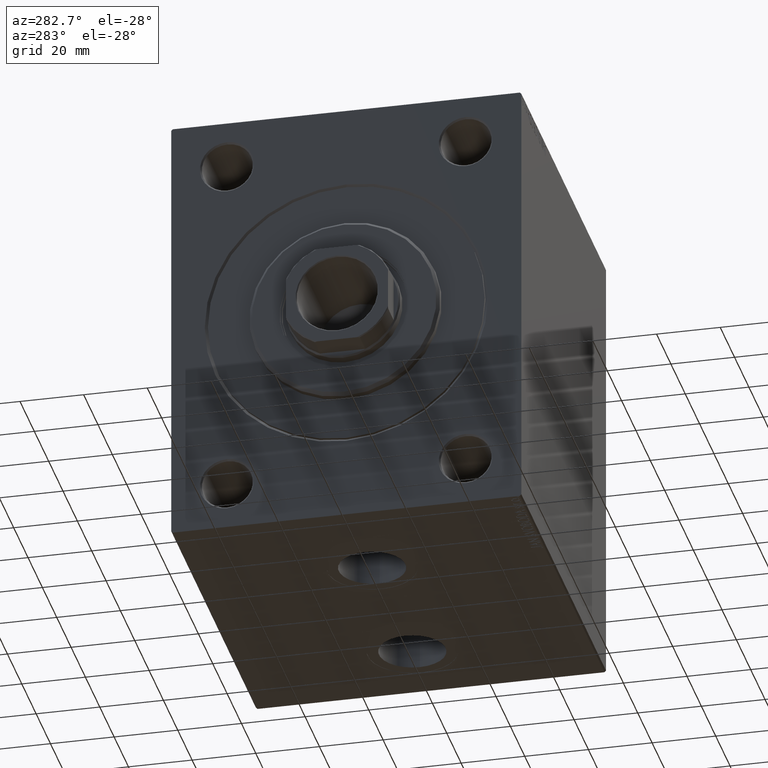
[diagram: clean part render]
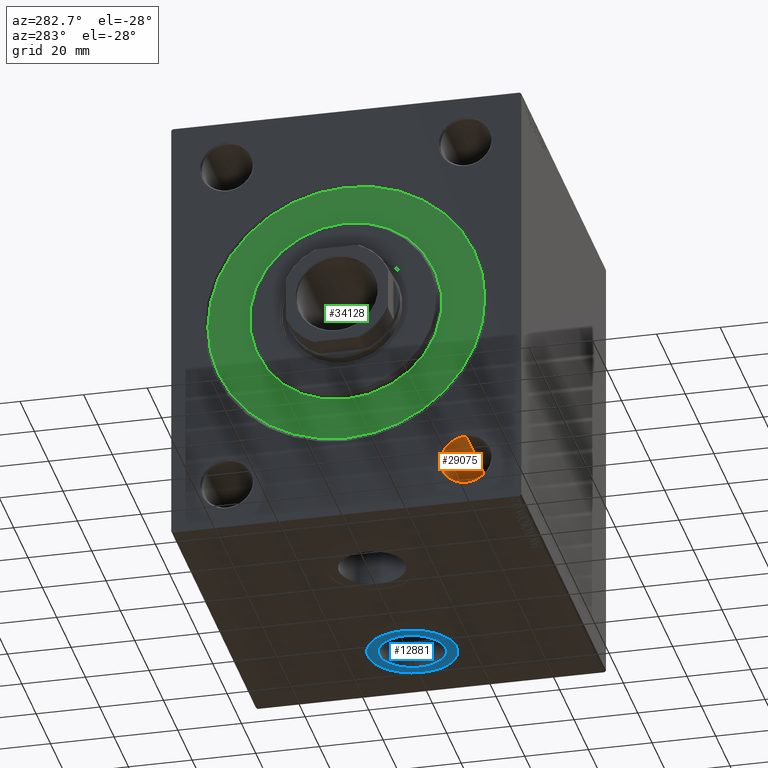
[diagram: same view with three faces highlighted in distinct colors, each labeled with its STEP entity id]
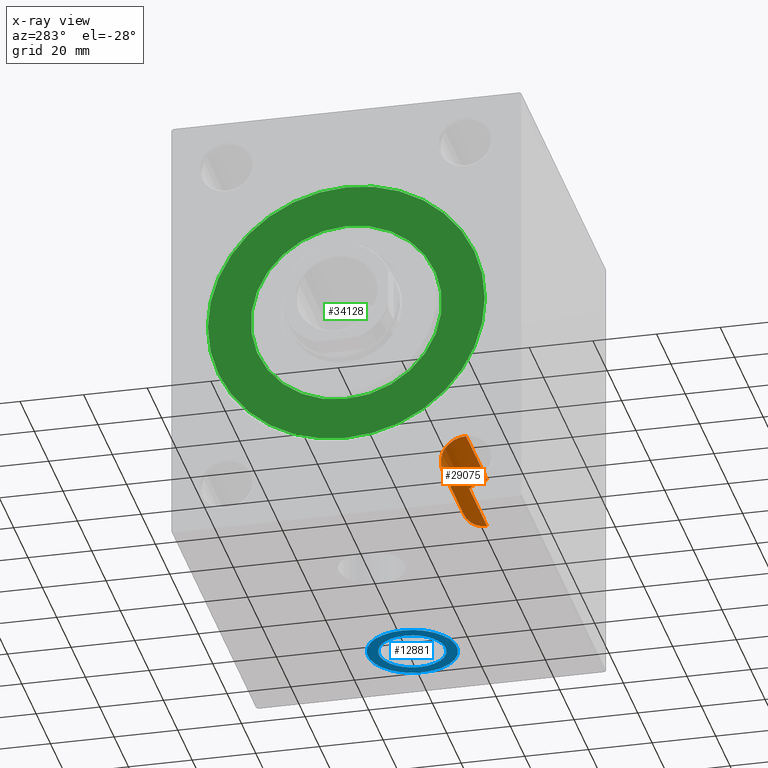
[diagram: x-ray of the same camera — body ghosted, the three highlighted faces saturated]
A machine part, auxiliary view with three faces highlighted in distinct colors.
The next image is the same camera in x-ray (body ghosted, the three faces saturated) — at least one of them is partly hidden behind the body in this view.
Their STEP definitions:

[orange] entity #29075 — the highlighted cylindrical surface (edge-blend (fillet) strip) has radius 8 mm, axis along (-1, -0, -0).
#1855 = EDGE_CURVE ( 'NONE', #7362, #41168, #27287, .T. ) ;
#6958 = VECTOR ( 'NONE', #22902, 1000.000000000000000 ) ;
#7362 = VERTEX_POINT ( 'NONE', #11000 ) ;
#7599 = CYLINDRICAL_SURFACE ( 'NONE', #10254, 7.999999999999992895 ) ;
#10254 = AXIS2_PLACEMENT_3D ( 'NONE', #27863, #39350, #21404 ) ;
#10967 = LINE ( 'NONE', #25005, #6958 ) ;
#11000 = CARTESIAN_POINT ( 'NONE',  ( 0.5000000000000125455, -37.49999999999999289, -47.00000000000000000 ) ) ;
#11534 = EDGE_CURVE ( 'NONE', #30132, #41168, #10967, .T. ) ;
#12246 = EDGE_CURVE ( 'NONE', #37604, #30132, #28314, .T. ) ;
#12444 = ORIENTED_EDGE ( 'NONE', *, *, #1855, .T. ) ;
#12897 = CARTESIAN_POINT ( 'NONE',  ( 30.00000000000000000, -37.49999999999999289, -54.99999999999999289 ) ) ;
#14554 = ORIENTED_EDGE ( 'NONE', *, *, #12246, .F. ) ;
#15951 = CARTESIAN_POINT ( 'NONE',  ( 0.5000000000000125455, -37.49999999999999289, -62.99999999999998579 ) ) ;
#17644 = VECTOR ( 'NONE', #39296, 1000.000000000000000 ) ;
#20265 = DIRECTION ( 'NONE',  ( 0.000000000000000000, 0.000000000000000000, 1.000000000000000000 ) ) ;
#21404 = DIRECTION ( 'NONE',  ( 0.000000000000000000, 0.000000000000000000, 1.000000000000000000 ) ) ;
#22122 = AXIS2_PLACEMENT_3D ( 'NONE', #40516, #29720, #23052 ) ;
#22496 = LINE ( 'NONE', #29163, #17644 ) ;
#22902 = DIRECTION ( 'NONE',  ( -1.000000000000000000, -0.000000000000000000, -0.000000000000000000 ) ) ;
#23052 = DIRECTION ( 'NONE',  ( 0.000000000000000000, 0.000000000000000000, -1.000000000000000000 ) ) ;
#25005 = CARTESIAN_POINT ( 'NONE',  ( 0.000000000000000000, -37.49999999999999289, -62.99999999999998579 ) ) ;
#27287 = CIRCLE ( 'NONE', #22122, 7.999999999999992895 ) ;
#27863 = CARTESIAN_POINT ( 'NONE',  ( 0.000000000000000000, -37.49999999999999289, -54.99999999999999289 ) ) ;
#28314 = CIRCLE ( 'NONE', #44444, 7.999999999999992895 ) ;
#28543 = FACE_OUTER_BOUND ( 'NONE', #30761, .T. ) ;
#29075 = ADVANCED_FACE ( 'NONE', ( #28543 ), #7599, .F. ) ;
#29163 = CARTESIAN_POINT ( 'NONE',  ( 0.000000000000000000, -37.49999999999999289, -47.00000000000000000 ) ) ;
#29379 = EDGE_CURVE ( 'NONE', #37604, #7362, #22496, .T. ) ;
#29577 = CARTESIAN_POINT ( 'NONE',  ( 30.00000000000000000, -37.49999999999999289, -62.99999999999998579 ) ) ;
#29720 = DIRECTION ( 'NONE',  ( -1.000000000000000000, 0.000000000000000000, 0.000000000000000000 ) ) ;
#30132 = VERTEX_POINT ( 'NONE', #29577 ) ;
#30761 = EDGE_LOOP ( 'NONE', ( #37493, #14554, #32455, #12444 ) ) ;
#32455 = ORIENTED_EDGE ( 'NONE', *, *, #29379, .T. ) ;
#37493 = ORIENTED_EDGE ( 'NONE', *, *, #11534, .F. ) ;
#37604 = VERTEX_POINT ( 'NONE', #38778 ) ;
#38778 = CARTESIAN_POINT ( 'NONE',  ( 30.00000000000000000, -37.49999999999999289, -47.00000000000000000 ) ) ;
#39296 = DIRECTION ( 'NONE',  ( -1.000000000000000000, -0.000000000000000000, -0.000000000000000000 ) ) ;
#39350 = DIRECTION ( 'NONE',  ( -1.000000000000000000, -0.000000000000000000, -0.000000000000000000 ) ) ;
#40516 = CARTESIAN_POINT ( 'NONE',  ( 0.5000000000000125455, -37.49999999999999289, -54.99999999999999289 ) ) ;
#41168 = VERTEX_POINT ( 'NONE', #15951 ) ;
#41635 = DIRECTION ( 'NONE',  ( -1.000000000000000000, -0.000000000000000000, -0.000000000000000000 ) ) ;
#44444 = AXIS2_PLACEMENT_3D ( 'NONE', #12897, #41635, #20265 ) ;

[blue] entity #12881 — the highlighted planar face has unit normal (0, 0, -1).
#1534 = CIRCLE ( 'NONE', #8138, 13.99999999999999822 ) ;
#3575 = DIRECTION ( 'NONE',  ( -1.000000000000000000, 0.000000000000000000, 0.000000000000000000 ) ) ;
#4555 = AXIS2_PLACEMENT_3D ( 'NONE', #7706, #24753, #3575 ) ;
#7268 = EDGE_LOOP ( 'NONE', ( #36026, #42651 ) ) ;
#7706 = CARTESIAN_POINT ( 'NONE',  ( 92.00000000000000000, -3.896177599120782744E-15, -69.90000000000000568 ) ) ;
#8138 = AXIS2_PLACEMENT_3D ( 'NONE', #9464, #13363, #27858 ) ;
#8757 = FACE_OUTER_BOUND ( 'NONE', #7268, .T. ) ;
#9464 = CARTESIAN_POINT ( 'NONE',  ( 92.00000000000000000, -3.896177599120782744E-15, -69.90000000000000568 ) ) ;
#10564 = AXIS2_PLACEMENT_3D ( 'NONE', #18833, #43427, #11925 ) ;
#11925 = DIRECTION ( 'NONE',  ( -1.000000000000000000, 0.000000000000000000, 0.000000000000000000 ) ) ;
#11986 = PLANE ( 'NONE',  #16548 ) ;
#12149 = CARTESIAN_POINT ( 'NONE',  ( 92.00000000000000000, -3.896177599120782744E-15, -69.90000000000000568 ) ) ;
#12541 = EDGE_CURVE ( 'NONE', #45520, #35459, #24638, .T. ) ;
#12881 = ADVANCED_FACE ( 'NONE', ( #40489, #8757 ), #11986, .T. ) ;
#13363 = DIRECTION ( 'NONE',  ( 0.000000000000000000, 0.000000000000000000, -1.000000000000000000 ) ) ;
#15350 = EDGE_CURVE ( 'NONE', #15894, #28685, #16508, .T. ) ;
#15894 = VERTEX_POINT ( 'NONE', #42536 ) ;
#16433 = ORIENTED_EDGE ( 'NONE', *, *, #36651, .F. ) ;
#16508 = CIRCLE ( 'NONE', #43678, 10.48000000000000398 ) ;
#16548 = AXIS2_PLACEMENT_3D ( 'NONE', #25798, #18885, #32917 ) ;
#17806 = CIRCLE ( 'NONE', #4555, 10.48000000000000398 ) ;
#18833 = CARTESIAN_POINT ( 'NONE',  ( 92.00000000000000000, -3.896177599120782744E-15, -69.90000000000000568 ) ) ;
#18885 = DIRECTION ( 'NONE',  ( 0.000000000000000000, 0.000000000000000000, -1.000000000000000000 ) ) ;
#24638 = CIRCLE ( 'NONE', #10564, 13.99999999999999822 ) ;
#24753 = DIRECTION ( 'NONE',  ( 0.000000000000000000, 0.000000000000000000, -1.000000000000000000 ) ) ;
#25798 = CARTESIAN_POINT ( 'NONE',  ( 92.00000000000000000, -3.896177599120782744E-15, -69.90000000000000568 ) ) ;
#26402 = DIRECTION ( 'NONE',  ( 0.000000000000000000, 0.000000000000000000, -1.000000000000000000 ) ) ;
#27858 = DIRECTION ( 'NONE',  ( -1.000000000000000000, 0.000000000000000000, 0.000000000000000000 ) ) ;
#28577 = EDGE_LOOP ( 'NONE', ( #16433, #41597 ) ) ;
#28685 = VERTEX_POINT ( 'NONE', #41492 ) ;
#29857 = CARTESIAN_POINT ( 'NONE',  ( 106.0000000000000000, -2.181672080314487909E-15, -69.90000000000000568 ) ) ;
#31938 = EDGE_CURVE ( 'NONE', #35459, #45520, #1534, .T. ) ;
#32917 = DIRECTION ( 'NONE',  ( -1.000000000000000000, 0.000000000000000000, -0.000000000000000000 ) ) ;
#33036 = CARTESIAN_POINT ( 'NONE',  ( 78.00000000000000000, -3.896177599120782744E-15, -69.90000000000000568 ) ) ;
#35459 = VERTEX_POINT ( 'NONE', #33036 ) ;
#36026 = ORIENTED_EDGE ( 'NONE', *, *, #31938, .T. ) ;
#36651 = EDGE_CURVE ( 'NONE', #28685, #15894, #17806, .T. ) ;
#37678 = DIRECTION ( 'NONE',  ( -1.000000000000000000, 0.000000000000000000, 0.000000000000000000 ) ) ;
#40489 = FACE_BOUND ( 'NONE', #28577, .T. ) ;
#41492 = CARTESIAN_POINT ( 'NONE',  ( 81.51999999999999602, -3.896177599120782744E-15, -69.90000000000000568 ) ) ;
#41597 = ORIENTED_EDGE ( 'NONE', *, *, #15350, .F. ) ;
#42536 = CARTESIAN_POINT ( 'NONE',  ( 102.4800000000000040, -2.612747753614357256E-15, -69.90000000000000568 ) ) ;
#42651 = ORIENTED_EDGE ( 'NONE', *, *, #12541, .T. ) ;
#43427 = DIRECTION ( 'NONE',  ( 0.000000000000000000, 0.000000000000000000, -1.000000000000000000 ) ) ;
#43678 = AXIS2_PLACEMENT_3D ( 'NONE', #12149, #26402, #37678 ) ;
#45520 = VERTEX_POINT ( 'NONE', #29857 ) ;

[green] entity #34128 — the highlighted planar face has unit normal (1, -0, -0).
#491 = VERTEX_POINT ( 'NONE', #29311 ) ;
#910 = DIRECTION ( 'NONE',  ( -1.000000000000000000, 0.000000000000000000, 0.000000000000000000 ) ) ;
#2041 = AXIS2_PLACEMENT_3D ( 'NONE', #44323, #26391, #37430 ) ;
#2972 = DIRECTION ( 'NONE',  ( -1.000000000000000000, 0.000000000000000000, 0.000000000000000000 ) ) ;
#3223 = ORIENTED_EDGE ( 'NONE', *, *, #17926, .F. ) ;
#4587 = CIRCLE ( 'NONE', #39850, 30.00000000000000000 ) ;
#5624 = VERTEX_POINT ( 'NONE', #32524 ) ;
#5973 = AXIS2_PLACEMENT_3D ( 'NONE', #20469, #2972, #39074 ) ;
#7591 = DIRECTION ( 'NONE',  ( 0.000000000000000000, 0.000000000000000000, 1.000000000000000000 ) ) ;
#8657 = DIRECTION ( 'NONE',  ( 1.000000000000000000, -0.000000000000000000, 0.000000000000000000 ) ) ;
#10882 = VERTEX_POINT ( 'NONE', #29087 ) ;
#13329 = FACE_BOUND ( 'NONE', #21657, .T. ) ;
#13987 = CARTESIAN_POINT ( 'NONE',  ( 0.000000000000000000, 0.000000000000000000, 0.000000000000000000 ) ) ;
#16466 = EDGE_LOOP ( 'NONE', ( #3223, #23479 ) ) ;
#17926 = EDGE_CURVE ( 'NONE', #5624, #491, #34228, .T. ) ;
#20207 = VERTEX_POINT ( 'NONE', #26756 ) ;
#20469 = CARTESIAN_POINT ( 'NONE',  ( 0.000000000000000000, 0.000000000000000000, 0.000000000000000000 ) ) ;
#21507 = AXIS2_PLACEMENT_3D ( 'NONE', #22916, #8657, #26588 ) ;
#21657 = EDGE_LOOP ( 'NONE', ( #32137, #43320 ) ) ;
#22916 = CARTESIAN_POINT ( 'NONE',  ( 0.000000000000000000, 0.000000000000000000, 0.000000000000000000 ) ) ;
#23378 = EDGE_CURVE ( 'NONE', #491, #5624, #42430, .T. ) ;
#23479 = ORIENTED_EDGE ( 'NONE', *, *, #23378, .F. ) ;
#23930 = PLANE ( 'NONE',  #5973 ) ;
#26391 = DIRECTION ( 'NONE',  ( -1.000000000000000000, 0.000000000000000000, 0.000000000000000000 ) ) ;
#26588 = DIRECTION ( 'NONE',  ( 0.000000000000000000, 0.000000000000000000, -1.000000000000000000 ) ) ;
#26756 = CARTESIAN_POINT ( 'NONE',  ( 0.000000000000000000, 3.673940397442059178E-15, -30.00000000000000000 ) ) ;
#27371 = FACE_OUTER_BOUND ( 'NONE', #16466, .T. ) ;
#29087 = CARTESIAN_POINT ( 'NONE',  ( 0.000000000000000000, 0.000000000000000000, 30.00000000000000000 ) ) ;
#29311 = CARTESIAN_POINT ( 'NONE',  ( 0.000000000000000000, 5.327213576290986044E-15, 43.50000000000000000 ) ) ;
#32137 = ORIENTED_EDGE ( 'NONE', *, *, #40183, .F. ) ;
#32420 = CARTESIAN_POINT ( 'NONE',  ( 0.000000000000000000, 0.000000000000000000, 0.000000000000000000 ) ) ;
#32524 = CARTESIAN_POINT ( 'NONE',  ( 0.000000000000000000, 0.000000000000000000, -43.50000000000000000 ) ) ;
#34003 = CIRCLE ( 'NONE', #21507, 30.00000000000000000 ) ;
#34128 = ADVANCED_FACE ( 'NONE', ( #13329, #27371 ), #23930, .F. ) ;
#34228 = CIRCLE ( 'NONE', #42286, 43.50000000000000000 ) ;
#37430 = DIRECTION ( 'NONE',  ( 0.000000000000000000, 0.000000000000000000, 1.000000000000000000 ) ) ;
#39074 = DIRECTION ( 'NONE',  ( 0.000000000000000000, 0.000000000000000000, 1.000000000000000000 ) ) ;
#39850 = AXIS2_PLACEMENT_3D ( 'NONE', #13987, #41607, #45502 ) ;
#40183 = EDGE_CURVE ( 'NONE', #10882, #20207, #4587, .T. ) ;
#40761 = EDGE_CURVE ( 'NONE', #20207, #10882, #34003, .T. ) ;
#41607 = DIRECTION ( 'NONE',  ( 1.000000000000000000, -0.000000000000000000, 0.000000000000000000 ) ) ;
#42286 = AXIS2_PLACEMENT_3D ( 'NONE', #32420, #910, #7591 ) ;
#42430 = CIRCLE ( 'NONE', #2041, 43.50000000000000000 ) ;
#43320 = ORIENTED_EDGE ( 'NONE', *, *, #40761, .F. ) ;
#44323 = CARTESIAN_POINT ( 'NONE',  ( 0.000000000000000000, 0.000000000000000000, 0.000000000000000000 ) ) ;
#45502 = DIRECTION ( 'NONE',  ( 0.000000000000000000, 0.000000000000000000, -1.000000000000000000 ) ) ;